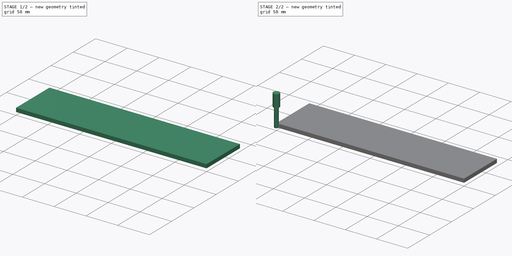
[diagram: build sequence overview — one tinted view per stage of 2, left to right]
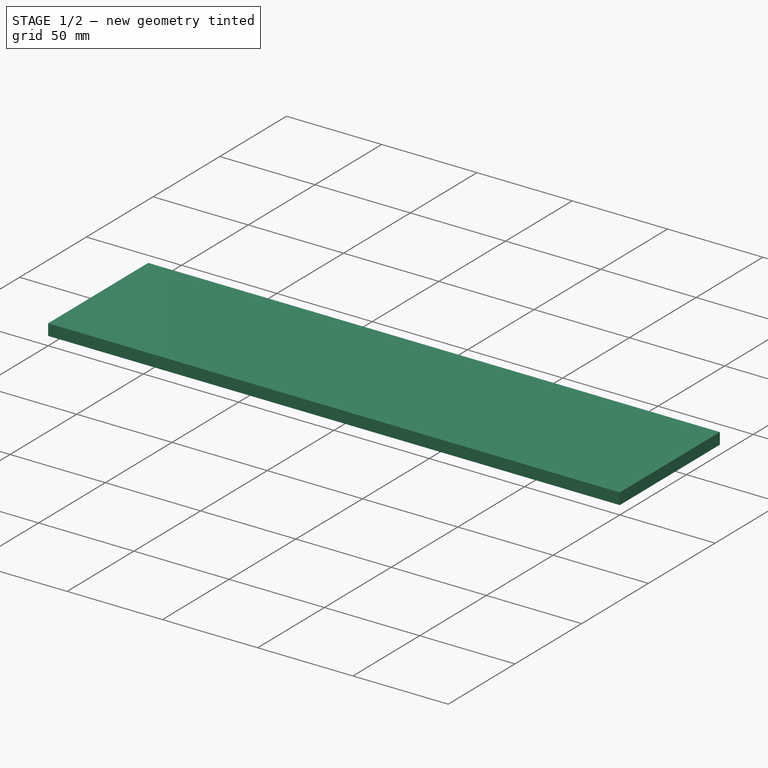
[diagram: stage 1 of 2 — iso view after this stage's code; geometry added in this stage tinted green]
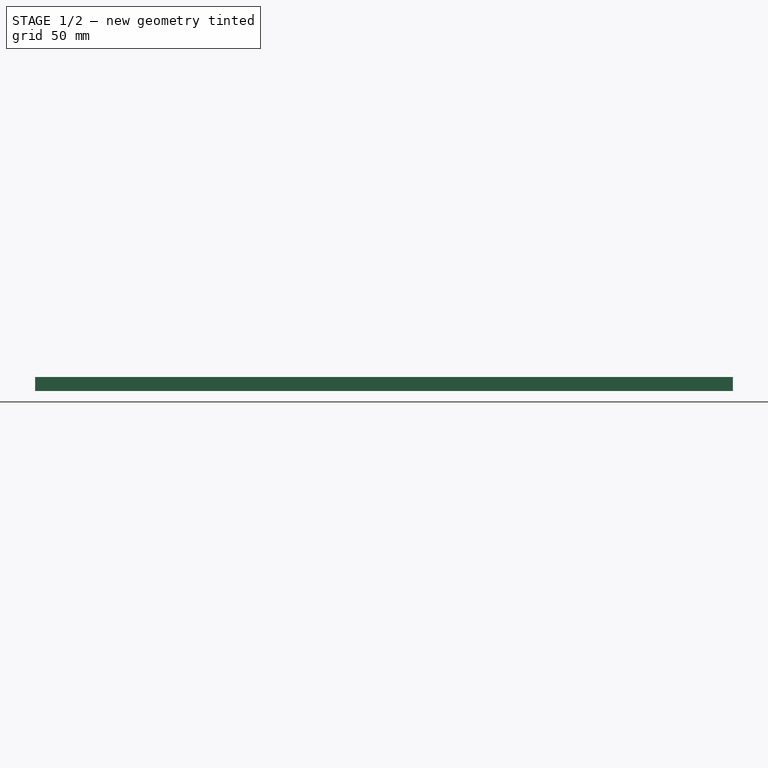
[diagram: stage 1 of 2 — front view after this stage's code; geometry added in this stage tinted green]
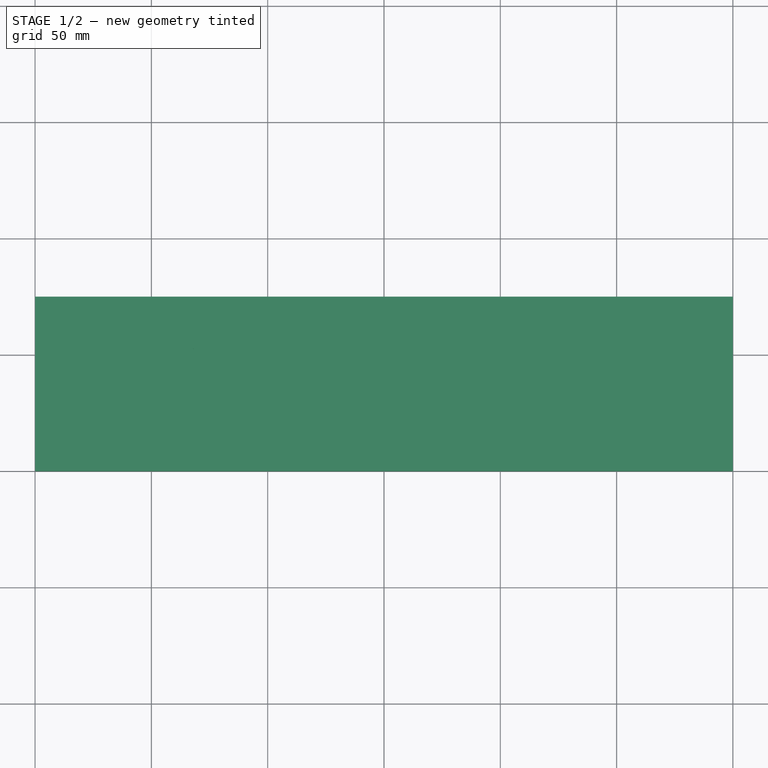
[diagram: stage 1 of 2 — top view after this stage's code; geometry added in this stage tinted green]
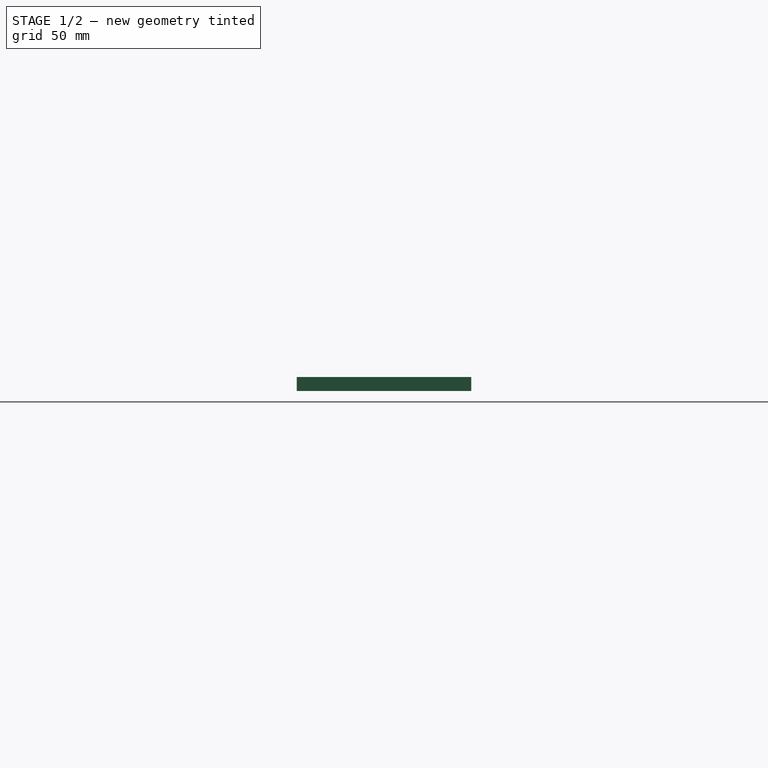
[diagram: stage 1 of 2 — right view after this stage's code; geometry added in this stage tinted green]
FCSTD DOCUMENT  (FreeCAD 0.20RUnknown)
Label: Snake
License: All rights reserved
LicenseURL: http://en.wikipedia.org/wiki/All_rights_reserved
objects: Sketcher::SketchObject×3, App::DocumentObjectGroup×3, Part::FeaturePython×3, Path::FeaturePython×2, App::FeaturePython×1, PartDesign::Body×1, PartDesign::Pad×1, Part::Offset2D×1, PartDesign::FeatureBase×1, PartDesign::Pocket×1
note: 13 computed .brp shape members not serialized (recipe doc carries the construction recipe); baked Part::Feature solids carry a one-line shape summary decoded from their .brp

FEATURE [Path::FeaturePython] __4mm_Endmill  label="6.4mm Endmill001"  # Path/CAM operation (typed FeaturePython)
  HorizFeed = 15
  HorizRapid = 0
  SpindleDir = 0
  SpindleSpeed = 13002
  Tool = -> ToolBit001
  ToolNumber = 2
  VertFeed = 5
  VertRapid = 0
  expr: HorizRapid = SetupSheet.HorizRapid
  expr: VertRapid = SetupSheet.VertRapid
FEATURE [App::DocumentObjectGroup] Tools
  Group = -> [__4mm_Endmill]
FEATURE [Part::FeaturePython] Stock  # WARN: FeaturePython — macro-defined, semantics opaque (R4)
  Height = 6
  Length = 300
  StockType = CreateBox
  Width = 75
FEATURE [Part::Offset2D] Offset2D
  Fill = false
  Intersection = false
  Join = 0
  Mode = 1
  SelfIntersection = false
  Source = -> Sketch001
  Value = 3.3
FEATURE [PartDesign::FeatureBase] BaseFeature
  BaseFeature = -> Offset2D
FEATURE [PartDesign::Pocket] Pocket
  BaseFeature = -> Pad
  Direction = (0,-1e-16,-1)
  Length = 5
  Length2 = 5
  Profile = -> BaseFeature
  Type = 1
note: 1 file-system path scrubbed to <path> (originals preserved in the JSON sidecar)
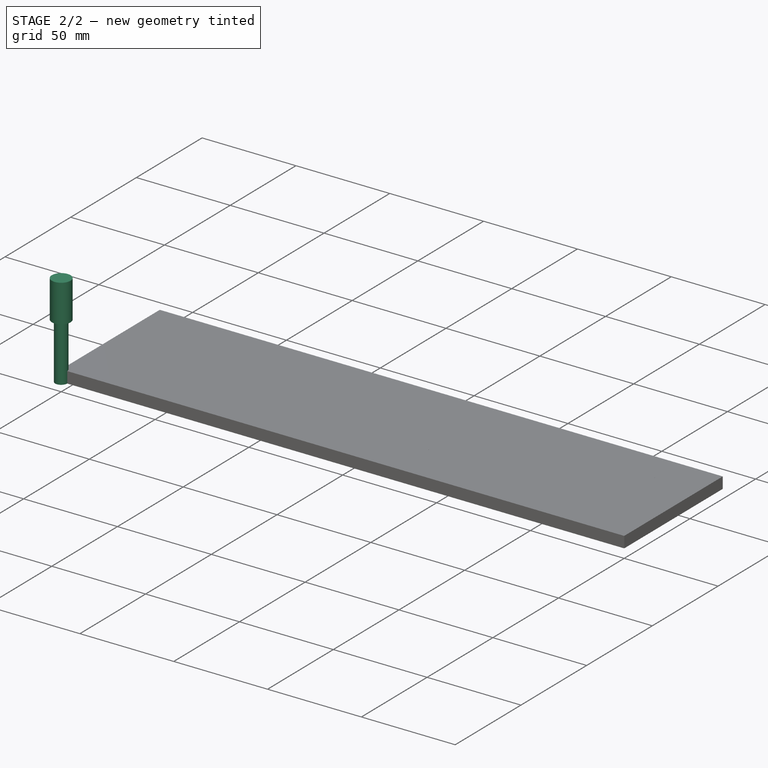
[diagram: stage 2 of 2 — iso view after this stage's code; geometry added in this stage tinted green]
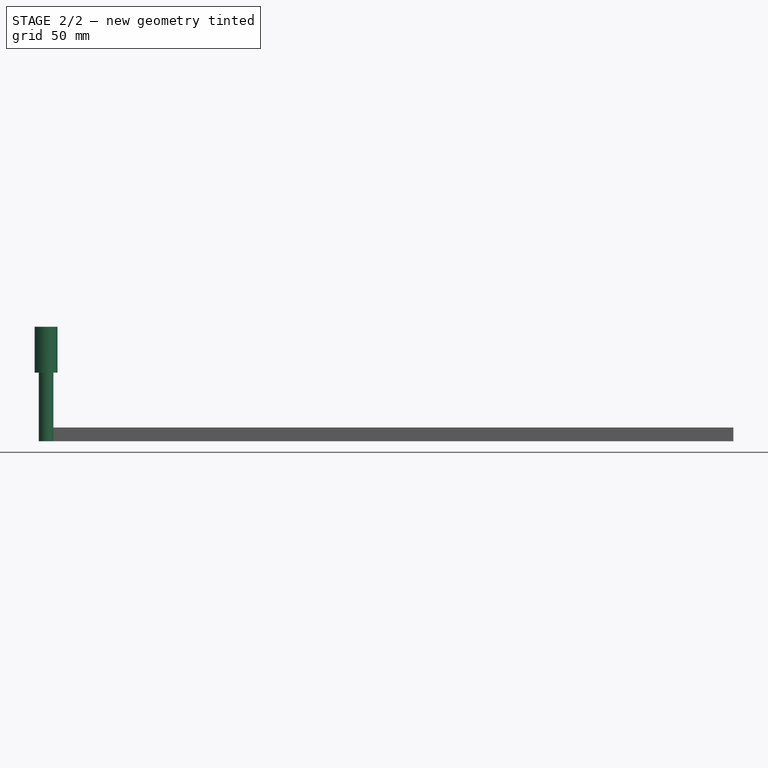
[diagram: stage 2 of 2 — front view after this stage's code; geometry added in this stage tinted green]
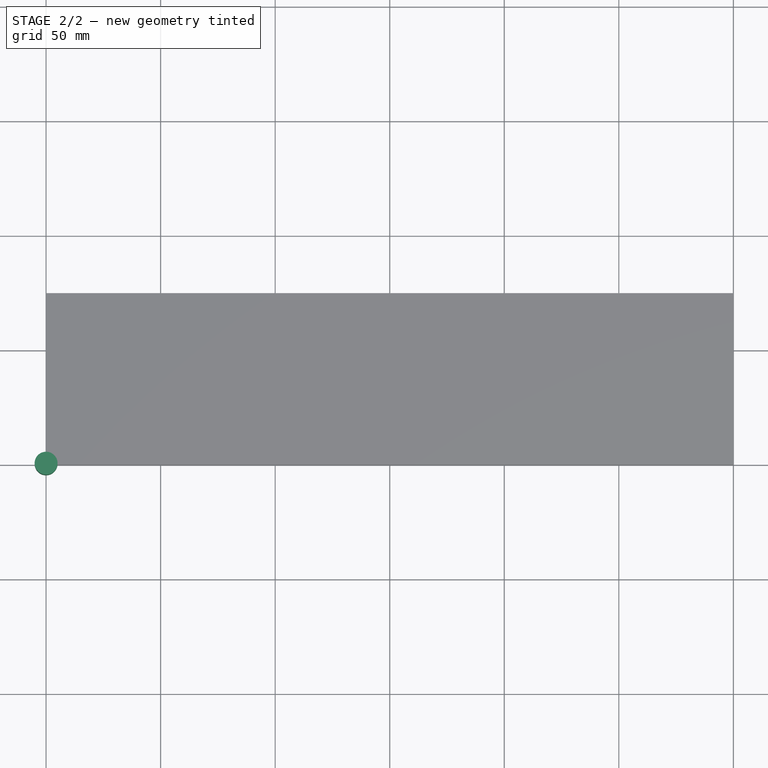
[diagram: stage 2 of 2 — top view after this stage's code; geometry added in this stage tinted green]
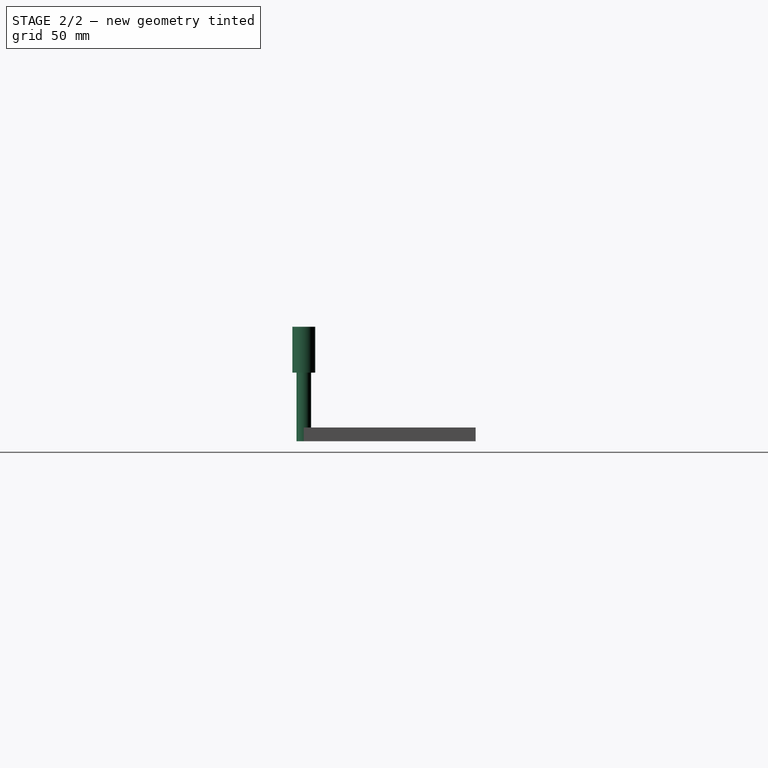
[diagram: stage 2 of 2 — right view after this stage's code; geometry added in this stage tinted green]
FEATURE [Sketcher::SketchObject] Sketch
  FullyConstrained = true
  MapMode = 5
  Support = -> [XY_Plane]
  sketch-geometry (4):
    g0: LineSegment StartX=0 StartY=75 StartZ=0 EndX=300 EndY=75 EndZ=0
    g1: LineSegment StartX=300 StartY=75 StartZ=0 EndX=300 EndY=0 EndZ=0
    g2: LineSegment StartX=300 StartY=0 StartZ=0 EndX=0 EndY=0 EndZ=0
    g3: LineSegment StartX=0 StartY=0 StartZ=0 EndX=0 EndY=75 EndZ=0
  constraints (11):
    c: Coincident(g0,g1)
    c: Coincident(g1,g2)
    c: Coincident(g2,g3)
    c: Coincident(g3,g0)
    c: Horizontal(g0)
    c: Horizontal(g2)
    c: Vertical(g1)
    c: Vertical(g3)
    c: Coincident(g2,g-1)
    c: DistanceY(g3,g3) = 75
    c: DistanceX(g2,g2) = 300
FEATURE [App::DocumentObjectGroup] Operations
FEATURE [App::FeaturePython] SetupSheet  # Path/CAM operation (typed FeaturePython)
  ClearanceHeightExpression = OpStockZMax+SetupSheet.ClearanceHeightOffset
  ClearanceHeightOffset = 5
  CoolantMode = 0
  CoolantModes = None | Flood | Mist
  FinalDepthExpression = OpFinalDepth
  HorizRapid = 0
  SafeHeightExpression = OpStockZMax+SetupSheet.SafeHeightOffset
  SafeHeightOffset = 3
  StartDepthExpression = OpStartDepth
  StepDownExpression = OpToolDiameter
  VertRapid = 0
FEATURE [Part::FeaturePython] ToolBit001  label="6.4mm Endmill"  # Path/CAM toolbit (typed FeaturePython)
  BitPropertyNames = Chipload | CuttingEdgeHeight | Diameter | Flutes | Length | Material | ShankDiameter | SpindleDirection
  BitShape = <path>
  Chipload = 0
  CuttingEdgeHeight = 30
  Diameter = 6.4
  File = <userpath>/Documents/Sherline/FreeCAD/Bit/6.4mm_Endmill.fctb
  Flutes = 0
  Length = 50
  Material = 0
  ShankDiameter = 10
  ShapeName = endmill
  SpindleDirection = 0
FEATURE [Sketcher::SketchObject] Sketch002
  FullyConstrained = false
  Placement = pos=(0,0,0) rot=(0.9616,-0.274456,0;3.14159rad)
  sketch-geometry (70):
    g0: ArcOfCircle CenterX=-279.876 CenterY=-57.9899 CenterZ=0 NormalX=0 NormalY=0 NormalZ=1 AngleXU=-1e-16 Radius=3.3 StartAngle=1.5708 EndAngle=4.71239
    g1: LineSegment StartX=-283.176 StartY=-55.7467 StartZ=0 EndX=-283.176 EndY=-57.9899 EndZ=0
    g2: ArcOfCircle CenterX=-279.876 CenterY=-55.7467 CenterZ=0 NormalX=0 NormalY=0 NormalZ=1 AngleXU=3.14159 Radius=3.3 StartAngle=4.5347 EndAngle=4.71239
    g3: LineSegment StartX=-283.031 StartY=-54.6434 StartZ=0 EndX=-283.124 EndY=-55.1634 EndZ=0
    g4: LineSegment StartX=-282.838 StartY=-53.3976 StartZ=0 EndX=-283.031 EndY=-54.6434 EndZ=0
    g5: LineSegment StartX=-282.197 StartY=-49.0875 StartZ=0 EndX=-282.838 EndY=-53.3976 EndZ=0
    g6: BSplineCurve PolesCount=32 KnotsCount=4 Degree=11 IsPeriodic=0
    g7: BSplineCurve PolesCount=13 KnotsCount=2 Degree=12 IsPeriodic=0
    g8: BSplineCurve PolesCount=8 KnotsCount=2 Degree=7 IsPeriodic=0
    g9: BSplineCurve PolesCount=24 KnotsCount=3 Degree=12 IsPeriodic=0
    g10: BSplineCurve PolesCount=15 KnotsCount=2 Degree=14 IsPeriodic=0
    g11: BSplineCurve PolesCount=10 KnotsCount=2 Degree=9 IsPeriodic=0
    g12: BSplineCurve PolesCount=18 KnotsCount=3 Degree=9 IsPeriodic=0
    g13: BSplineCurve PolesCount=15 KnotsCount=2 Degree=14 IsPeriodic=0
    g14: BSplineCurve PolesCount=28 KnotsCount=3 Degree=14 IsPeriodic=0
    g15: BSplineCurve PolesCount=11 KnotsCount=2 Degree=10 IsPeriodic=0
    g16: BSplineCurve PolesCount=9 KnotsCount=2 Degree=8 IsPeriodic=0
    g17: BSplineCurve PolesCount=26 KnotsCount=3 Degree=13 IsPeriodic=0
    g18: BSplineCurve PolesCount=15 KnotsCount=2 Degree=14 IsPeriodic=0
    g19: BSplineCurve PolesCount=10 KnotsCount=2 Degree=9 IsPeriodic=0
    g20: BSplineCurve PolesCount=12 KnotsCount=2 Degree=11 IsPeriodic=0
    g21: BSplineCurve PolesCount=22 KnotsCount=3 Degree=11 IsPeriodic=0
    g22: BSplineCurve PolesCount=41 KnotsCount=4 Degree=14 IsPeriodic=0
    g23: BSplineCurve PolesCount=28 KnotsCount=3 Degree=14 IsPeriodic=0
    g24: BSplineCurve PolesCount=41 KnotsCount=4 Degree=14 IsPeriodic=0
    g25: BSplineCurve PolesCount=28 KnotsCount=3 Degree=14 IsPeriodic=0
    g26: BSplineCurve PolesCount=24 KnotsCount=3 Degree=12 IsPeriodic=0
    g27: BSplineCurve PolesCount=18 KnotsCount=3 Degree=9 IsPeriodic=0
    g28: BSplineCurve PolesCount=26 KnotsCount=3 Degree=13 IsPeriodic=0
    g29: BSplineCurve PolesCount=22 KnotsCount=3 Degree=11 IsPeriodic=0
    g30: BSplineCurve PolesCount=32 KnotsCount=4 Degree=11 IsPeriodic=0
    g31: BSplineCurve PolesCount=41 KnotsCount=4 Degree=14 IsPeriodic=0
    g32: BSplineCurve PolesCount=28 KnotsCount=3 Degree=14 IsPeriodic=0
    g33: BSplineCurve PolesCount=24 KnotsCount=3 Degree=12 IsPeriodic=0
    g34: ArcOfCircle CenterX=-13.9444 CenterY=-59.0505 CenterZ=0 NormalX=0 NormalY=0 NormalZ=1 AngleXU=0.0504405 Radius=3.3 StartAngle=1.5708 EndAngle=4.71239
    g35: BSplineCurve PolesCount=24 KnotsCount=3 Degree=12 IsPeriodic=0
    g36: BSplineCurve PolesCount=28 KnotsCount=3 Degree=14 IsPeriodic=0
    g37: BSplineCurve PolesCount=41 KnotsCount=4 Degree=14 IsPeriodic=0
    g38: BSplineCurve PolesCount=32 KnotsCount=4 Degree=11 IsPeriodic=0
    g39: BSplineCurve PolesCount=22 KnotsCount=3 Degree=11 IsPeriodic=0
    g40: BSplineCurve PolesCount=26 KnotsCount=3 Degree=13 IsPeriodic=0
    g41: BSplineCurve PolesCount=18 KnotsCount=3 Degree=9 IsPeriodic=0
    g42: BSplineCurve PolesCount=24 KnotsCount=3 Degree=12 IsPeriodic=0
    g43: BSplineCurve PolesCount=28 KnotsCount=3 Degree=14 IsPeriodic=0
    g44: BSplineCurve PolesCount=41 KnotsCount=4 Degree=14 IsPeriodic=0
    g45: BSplineCurve PolesCount=28 KnotsCount=3 Degree=14 IsPeriodic=0
    g46: BSplineCurve PolesCount=41 KnotsCount=4 Degree=14 IsPeriodic=0
    g47: BSplineCurve PolesCount=22 KnotsCount=3 Degree=11 IsPeriodic=0
    g48: BSplineCurve PolesCount=12 KnotsCount=2 Degree=11 IsPeriodic=0
    g49: BSplineCurve PolesCount=10 KnotsCount=2 Degree=9 IsPeriodic=0
    g50: BSplineCurve PolesCount=15 KnotsCount=2 Degree=14 IsPeriodic=0
    g51: BSplineCurve PolesCount=26 KnotsCount=3 Degree=13 IsPeriodic=0
    g52: BSplineCurve PolesCount=9 KnotsCount=2 Degree=8 IsPeriodic=0
    g53: BSplineCurve PolesCount=11 KnotsCount=2 Degree=10 IsPeriodic=0
    g54: BSplineCurve PolesCount=28 KnotsCount=3 Degree=14 IsPeriodic=0
    g55: BSplineCurve PolesCount=15 KnotsCount=2 Degree=14 IsPeriodic=0
    g56: BSplineCurve PolesCount=18 KnotsCount=3 Degree=9 IsPeriodic=0
    g57: BSplineCurve PolesCount=10 KnotsCount=2 Degree=9 IsPeriodic=0
    g58: BSplineCurve PolesCount=15 KnotsCount=2 Degree=14 IsPeriodic=0
    g59: BSplineCurve PolesCount=24 KnotsCount=3 Degree=12 IsPeriodic=0
    g60: BSplineCurve PolesCount=8 KnotsCount=2 Degree=7 IsPeriodic=0
    g61: BSplineCurve PolesCount=13 KnotsCount=2 Degree=12 IsPeriodic=0
    g62: BSplineCurve PolesCount=32 KnotsCount=4 Degree=11 IsPeriodic=0
    g63: ArcOfCircle CenterX=-278.933 CenterY=-49.5728 CenterZ=0 NormalX=0 NormalY=0 NormalZ=1 AngleXU=-0.146728 Radius=3.3 StartAngle=4.71152 EndAngle=4.71239
    g64: LineSegment StartX=-275.669 StartY=-50.0581 StartZ=0 EndX=-276.311 EndY=-54.3781 EndZ=0
    g65: ArcOfCircle CenterX=-279.575 CenterY=-53.8927 CenterZ=0 NormalX=0 NormalY=0 NormalZ=1 AngleXU=-0.147599 Radius=3.3 StartAngle=4.70637 EndAngle=4.71239
    g66: LineSegment StartX=-276.314 StartY=-54.3977 StartZ=0 EndX=-276.515 EndY=-55.6926 EndZ=0
    g67: ArcOfCircle CenterX=-279.776 CenterY=-55.1876 CenterZ=0 NormalX=0 NormalY=0 NormalZ=1 AngleXU=-0.153619 Radius=3.3 StartAngle=4.68832 EndAngle=4.71239
    g68: LineSegment StartX=-276.528 StartY=-55.7709 StartZ=0 EndX=-276.576 EndY=-56.0407 EndZ=0
    g69: LineSegment StartX=-276.576 StartY=-56.0407 StartZ=0 EndX=-276.576 EndY=-57.9899 EndZ=0
  constraints (71):
    c: Coincident(g0,g1)
    c: Vertical(g1)
    c: Coincident(g1,g2)
    c: Coincident(g2,g3)
    c: Coincident(g3,g4)
    c: Coincident(g4,g5)
    c: Coincident(g6,g7)
    c: Coincident(g7,g8)
    c: Coincident(g8,g9)
    c: Coincident(g9,g10)
    c: Coincident(g10,g11)
    c: Coincident(g11,g12)
    c: Coincident(g12,g13)
    c: Coincident(g13,g14)
    c: Coincident(g14,g15)
    c: Coincident(g15,g16)
    c: Coincident(g16,g17)
    c: Coincident(g17,g18)
    c: Coincident(g18,g19)
    c: Coincident(g19,g20)
    c: Coincident(g20,g21)
    c: Coincident(g21,g22)
    c: Coincident(g22,g23)
    c: Coincident(g23,g24)
    c: Coincident(g24,g25)
    c: Coincident(g25,g26)
    c: Coincident(g26,g27)
    c: Coincident(g27,g28)
    c: Coincident(g28,g29)
    c: Coincident(g29,g30)
    c: Coincident(g30,g31)
    c: Coincident(g31,g32)
    c: Coincident(g32,g33)
    c: Coincident(g33,g34)
    c: Coincident(g34,g35)
    c: Coincident(g35,g36)
    c: Coincident(g36,g37)
    c: Coincident(g37,g38)
    c: Coincident(g38,g39)
    c: Coincident(g39,g40)
    c: Coincident(g40,g41)
    c: Coincident(g41,g42)
    c: Coincident(g42,g43)
    c: Coincident(g43,g44)
    c: Coincident(g44,g45)
    c: Coincident(g45,g46)
    c: Coincident(g46,g47)
    c: Coincident(g47,g48)
    c: Coincident(g48,g49)
    c: Coincident(g49,g50)
    c: Coincident(g50,g51)
    c: Coincident(g51,g52)
    c: Coincident(g52,g53)
    c: Coincident(g53,g54)
    c: Coincident(g54,g55)
    c: Coincident(g55,g56)
    c: Coincident(g56,g57)
    c: Coincident(g57,g58)
    c: Coincident(g58,g59)
    c: Coincident(g59,g60)
    c: Coincident(g60,g61)
    c: Coincident(g61,g62)
    c: Coincident(g62,g63)
    c: Coincident(g63,g64)
    c: Coincident(g64,g65)
    c: Coincident(g65,g66)
    c: Coincident(g66,g67)
    c: Coincident(g67,g68)
    c: Coincident(g68,g69)
    c: Vertical(g69)
    c: Coincident(g69,g0)
FEATURE [PartDesign::Body] Body
  BaseFeature = -> Offset2D
  Group = -> [BaseFeature,Sketch,Pad,Sketch001,Pocket]
  Origin = -> Origin
  Tip = -> Pocket
FEATURE [PartDesign::Pad] Pad
  BaseFeature = -> BaseFeature
  Direction = (0,0,1)
  Length = 6
  Length2 = 10
  Profile = -> Sketch
  ReferenceAxis = -> Sketch [N_Axis]
  Type = 0
FEATURE [Sketcher::SketchObject] Sketch001
  FullyConstrained = false
  MapMode = 5
  Placement = pos=(0,0,6) rot=(0,0,1;0rad)
  Support = -> [Pad]
  sketch-geometry (62):
    g0-g30: Circle x31 (B-spline internal-alignment scaffolding for g31; pole/knot coordinates omitted)
    g31: BSplineCurve PolesCount=31 KnotsCount=29 Degree=3 IsPeriodic=0
    g32-g60: GeomPoint x29 (B-spline internal-alignment scaffolding for g31; pole/knot coordinates omitted)
    g61: LineSegment StartX=279.876 StartY=55.7467 StartZ=0 EndX=279.876 EndY=57.9899 EndZ=0
  constraints (6):
    c: Weight(g0) = 1
    c: Equal(g0, g1-g30) x30
    c: InternalAlignment(g0-g30 -> g31) x31
    c: InternalAlignment(g32-g60 -> g31) x29
    c: Coincident(g61,g31)
    c: Vertical(g61)
FEATURE [Path::FeaturePython] Job  # Path/CAM operation (typed FeaturePython)
  CycleTime = 00:00:00
  Fixtures = G54
  GeometryTolerance = 0.01
  JobType = 0
  Model = -> Model
  Operations = -> Operations
  OrderOutputBy = 0
  PostProcessor = 2
  PostProcessorOutputFile = %D/%d.ngc
  SetupSheet = -> SetupSheet
  SplitOutput = false
  Stock = -> Stock
  Tools = -> Tools
FEATURE [App::DocumentObjectGroup] Model
  Group = -> [Clone]
FEATURE [Part::FeaturePython] Clone  label="Model-Body"  # Draft clone (typed FeaturePython)
  AttacherType = Attacher::AttachEngine3D
  Fuse = false
  Objects = -> [Body]
  PathResource = Model
  Scale = (1,1,1)
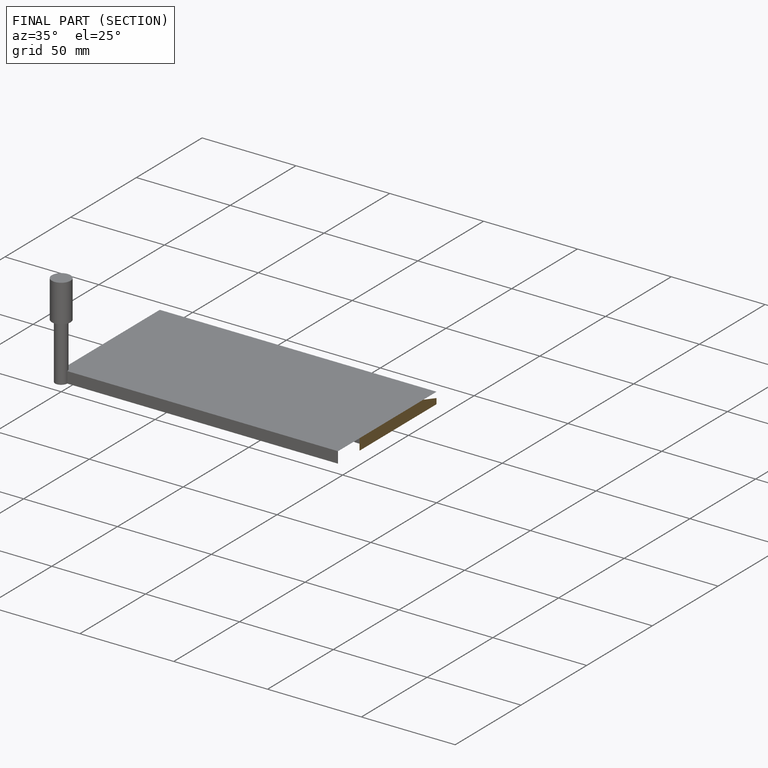
[diagram: finished part — half-section view (interior)]
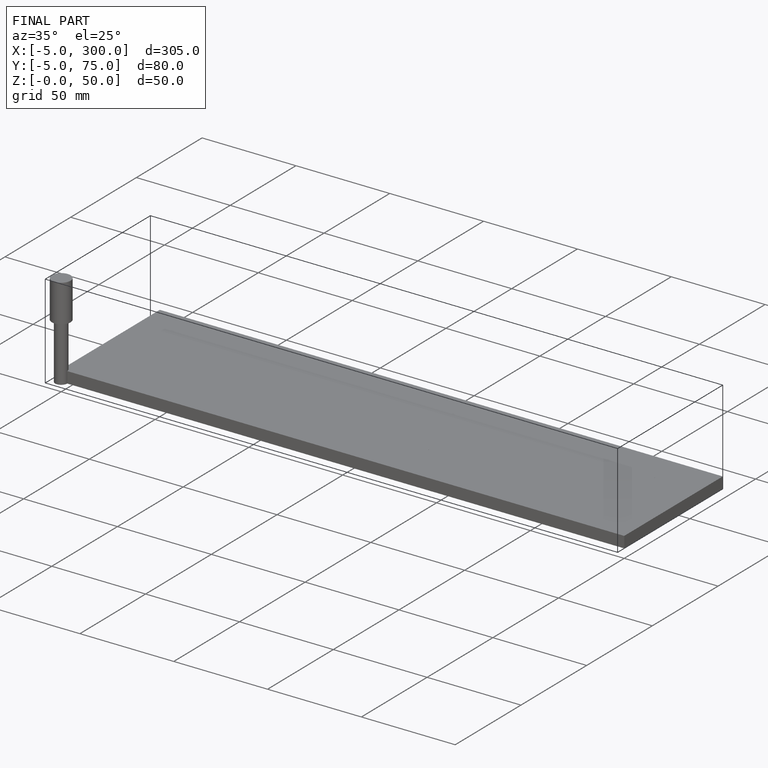
[diagram: finished part — iso view with bounding-box wireframe]
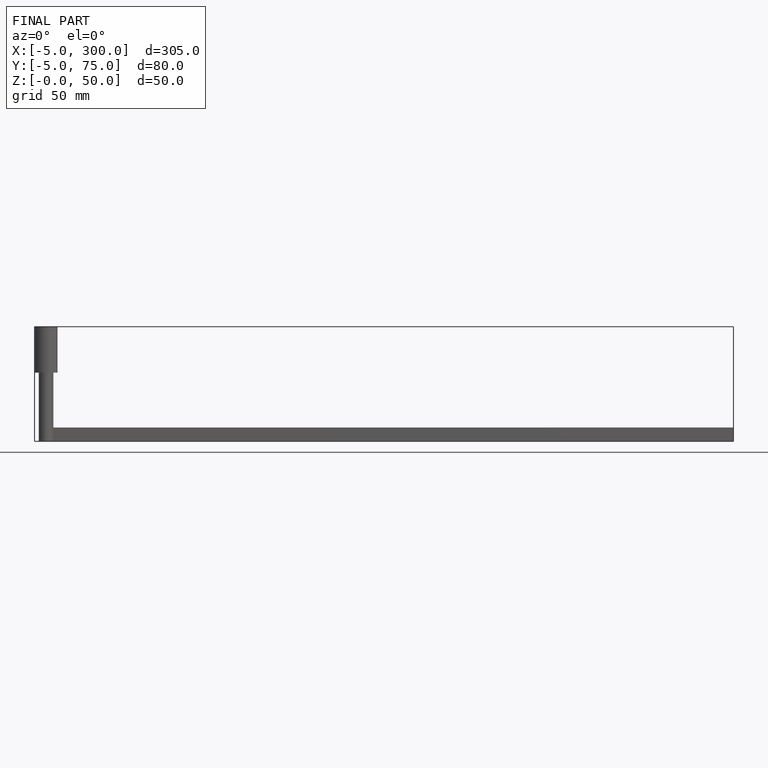
[diagram: finished part — front view with bounding-box wireframe]
